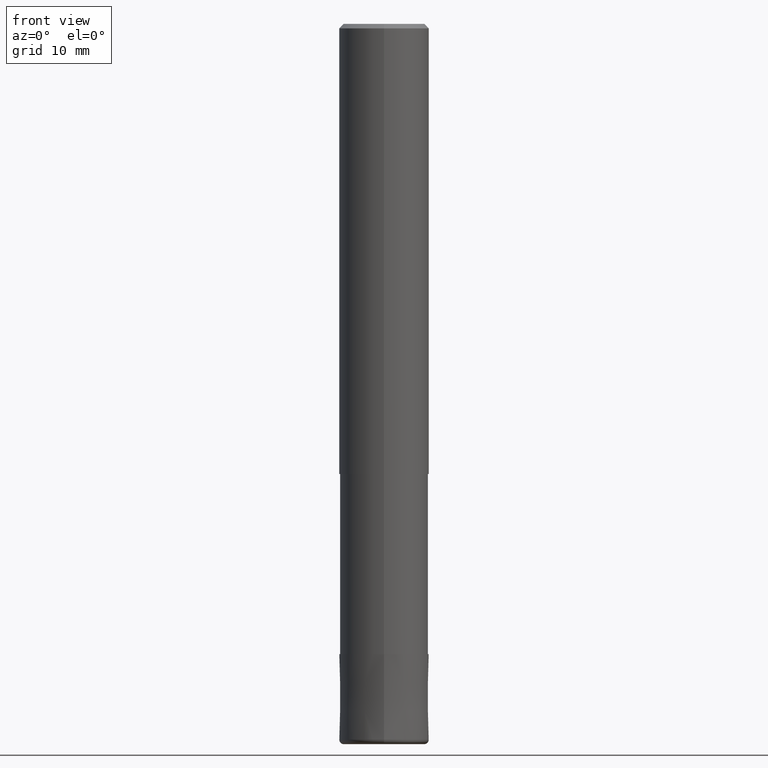
[diagram: clean part render]
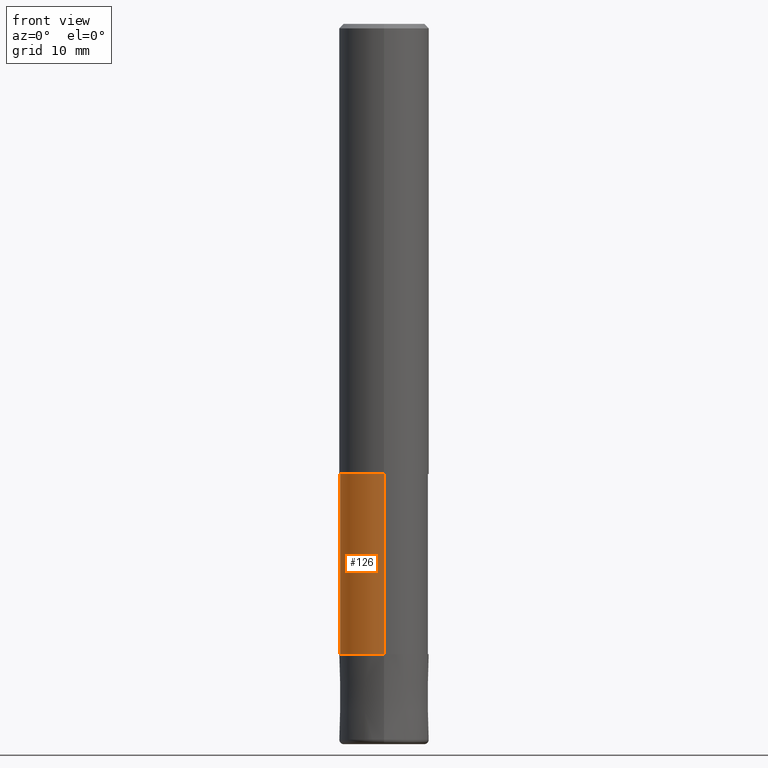
[diagram: same view with one face highlighted and labeled with its STEP entity id]
A machine part, front view. The second image highlights one B-rep face of the part: STEP entity #126.
In plain terms, the highlighted cylindrical surface (partial cylindrical patch) has radius 4.91 mm, axis along (-0, -0, 1).
Its self-contained STEP definition (entity closure, byte-faithful):
#96=EDGE_CURVE('',#172,#140,#234,.T.);
#126=ADVANCED_FACE('',(#267),#268,.T.);
#128=VERTEX_POINT('',#270);
#136=VERTEX_POINT('',#278);
#140=VERTEX_POINT('',#282);
#156=EDGE_CURVE('',#128,#172,#300,.T.);
#172=VERTEX_POINT('',#318);
#200=EDGE_CURVE('',#140,#136,#353,.T.);
#204=EDGE_CURVE('',#128,#136,#357,.T.);
#234=CIRCLE('',#381,4.90995);
#267=FACE_OUTER_BOUND('',#420,.T.);
#268=CYLINDRICAL_SURFACE('',#421,4.90995);
#270=CARTESIAN_POINT('',(6.01275596695018E-016,-4.90995,-70.0));
#278=CARTESIAN_POINT('',(0.0,4.90995,-70.0));
#282=CARTESIAN_POINT('',(0.0,4.90995,-50.0));
#300=LINE('',#460,#461);
#318=CARTESIAN_POINT('',(6.01275596695018E-016,-4.90995,-50.0));
#353=LINE('',#527,#528);
#357=CIRCLE('',#534,4.90995);
#381=AXIS2_PLACEMENT_3D('',#551,#552,#553);
#420=EDGE_LOOP('',(#588,#589,#590,#591));
#421=AXIS2_PLACEMENT_3D('',#592,#593,#594);
#460=CARTESIAN_POINT('',(6.01275596695018E-016,-4.90995,-60.0));
#461=VECTOR('',#626,1.0);
#527=CARTESIAN_POINT('',(-6.01275596695018E-016,4.90995,-60.0));
#528=VECTOR('',#709,1.0);
#534=AXIS2_PLACEMENT_3D('',#713,#714,#715);
#551=CARTESIAN_POINT('',(0.0,0.0,-50.0));
#552=DIRECTION('',(0.0,0.0,-1.0));
#553=DIRECTION('',(0.0,1.0,0.0));
#588=ORIENTED_EDGE('',*,*,#200,.T.);
#589=ORIENTED_EDGE('',*,*,#204,.F.);
#590=ORIENTED_EDGE('',*,*,#156,.T.);
#591=ORIENTED_EDGE('',*,*,#96,.T.);
#592=CARTESIAN_POINT('',(0.0,0.0,-60.0));
#593=DIRECTION('',(-0.0,-0.0,1.0));
#594=DIRECTION('',(0.0,1.0,0.0));
#626=DIRECTION('',(-0.0,-0.0,1.0));
#709=DIRECTION('',(0.0,0.0,-1.0));
#713=CARTESIAN_POINT('',(0.0,0.0,-70.0));
#714=DIRECTION('',(0.0,0.0,-1.0));
#715=DIRECTION('',(0.0,1.0,0.0));